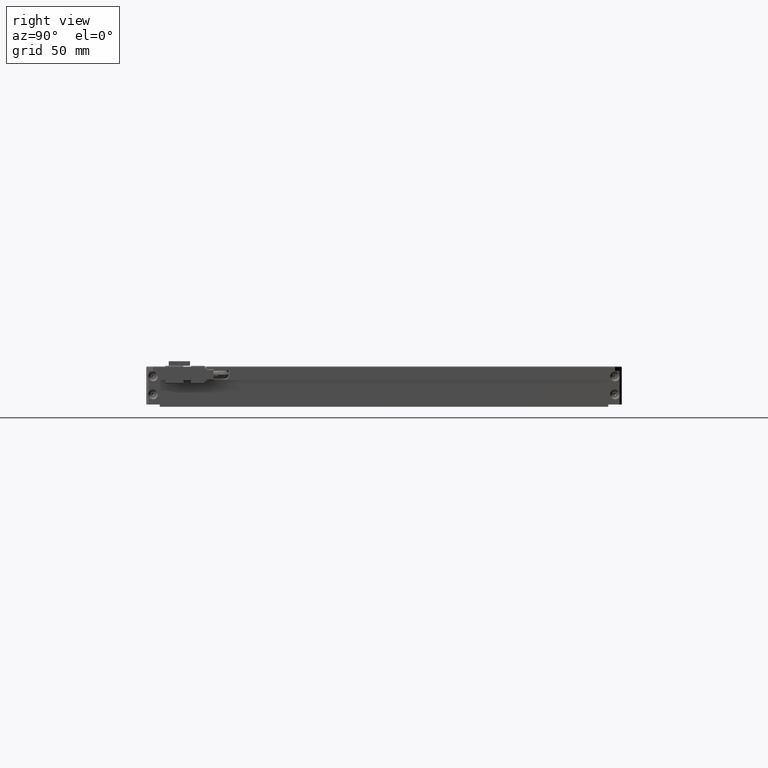
[diagram: clean part render]
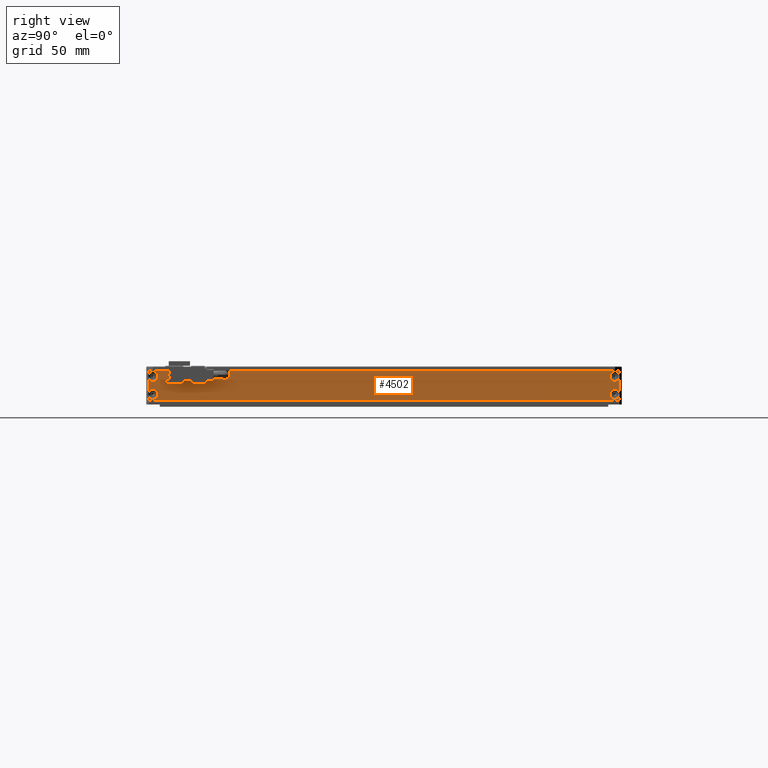
[diagram: same view with one face highlighted and labeled with its STEP entity id]
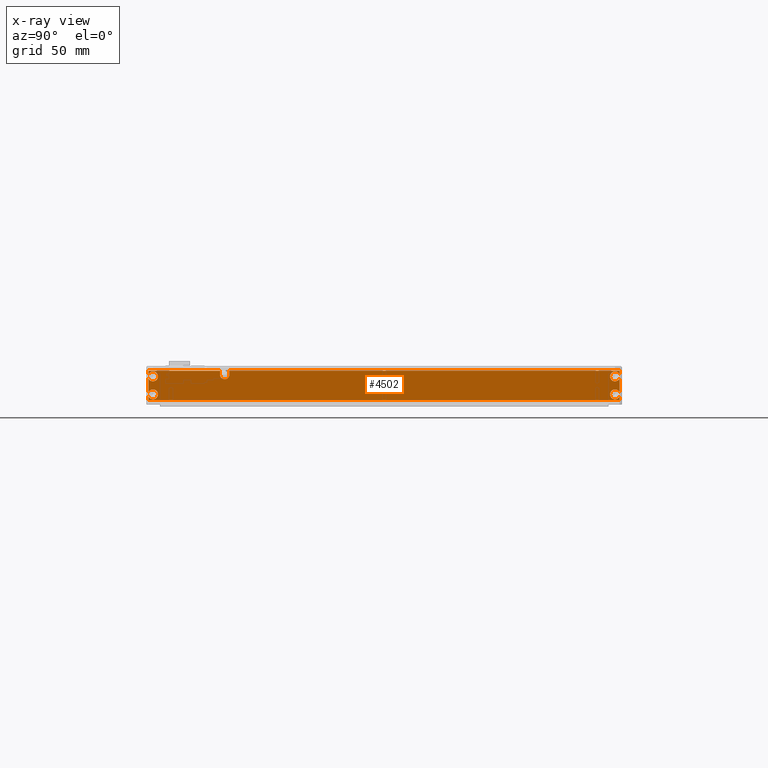
[diagram: x-ray of the same camera — body ghosted, the highlighted face saturated]
A machine part, right view. The second image highlights one B-rep face of the part: STEP entity #4502.
The next image is the same camera in x-ray: the body ghosted, the highlighted face saturated — about 0% of this face is hidden behind the body in this view.
In plain terms, the highlighted planar face has unit normal (1, 0, 0).
Its self-contained STEP definition (entity closure, byte-faithful):
#131 = EDGE_CURVE ( 'NONE', #10730, #13789, #5857, .T. ) ;
#309 = DIRECTION ( 'NONE',  ( -1.000000000000000000, -1.309225264888156400E-016, -0.0000000000000000000 ) ) ;
#881 = VECTOR ( 'NONE', #11494, 1000.000000000000000 ) ;
#920 = ORIENTED_EDGE ( 'NONE', *, *, #948, .T. ) ;
#948 = EDGE_CURVE ( 'NONE', #15920, #8405, #22082, .T. ) ;
#987 = EDGE_CURVE ( 'NONE', #13912, #3328, #17747, .T. ) ;
#1118 = ORIENTED_EDGE ( 'NONE', *, *, #8816, .T. ) ;
#1369 = CARTESIAN_POINT ( 'NONE',  ( 123.6657505824715700, 67.42124601721168600, -10.50000000002363100 ) ) ;
#1495 = CARTESIAN_POINT ( 'NONE',  ( 123.6657505824738500, 71.62124601721910700, -3.416515139024304500 ) ) ;
#1639 = CARTESIAN_POINT ( 'NONE',  ( 123.6657505824761500, -138.3787539827808400, -2.364254625408790400E-011 ) ) ;
#1671 = EDGE_CURVE ( 'NONE', #20873, #5273, #20940, .T. ) ;
#1681 = EDGE_CURVE ( 'NONE', #13428, #2593, #6517, .T. ) ;
#1760 = FACE_OUTER_BOUND ( 'NONE', #4660, .T. ) ;
#1860 = DIRECTION ( 'NONE',  ( 1.309225264888156400E-016, -1.000000000000000000, 2.751886685293596300E-019 ) ) ;
#1868 = CARTESIAN_POINT ( 'NONE',  ( 123.6657505824761200, 71.62124601721905000, -6.500000000023630900 ) ) ;
#1910 = VECTOR ( 'NONE', #21105, 1000.000000000000000 ) ;
#1979 = LINE ( 'NONE', #18743, #10654 ) ;
#2230 = VERTEX_POINT ( 'NONE', #1495 ) ;
#2355 = DIRECTION ( 'NONE',  ( -1.000000000000000000, -1.309225264888156400E-016, -0.0000000000000000000 ) ) ;
#2507 = ORIENTED_EDGE ( 'NONE', *, *, #4250, .T. ) ;
#2590 = VERTEX_POINT ( 'NONE', #11068 ) ;
#2593 = VERTEX_POINT ( 'NONE', #4169 ) ;
#2729 = VECTOR ( 'NONE', #3411, 1000.000000000000000 ) ;
#2904 = CIRCLE ( 'NONE', #18037, 2.200000000007598500 ) ;
#2907 = AXIS2_PLACEMENT_3D ( 'NONE', #11802, #13640, #20290 ) ;
#3209 = DIRECTION ( 'NONE',  ( -3.602839574495699400E-035, 2.751886685293596300E-019, 1.000000000000000000 ) ) ;
#3328 = VERTEX_POINT ( 'NONE', #20526 ) ;
#3393 = VERTEX_POINT ( 'NONE', #20687 ) ;
#3411 = DIRECTION ( 'NONE',  ( 3.602839574495699400E-035, -2.751886685293596300E-019, -1.000000000000000000 ) ) ;
#3790 = AXIS2_PLACEMENT_3D ( 'NONE', #16268, #309, #10852 ) ;
#3900 = EDGE_CURVE ( 'NONE', #8405, #11650, #10681, .T. ) ;
#3966 = CIRCLE ( 'NONE', #11959, 2.200000000007598500 ) ;
#4117 = DIRECTION ( 'NONE',  ( -1.309225264888156400E-016, 1.000000000000000000, -2.751886685293596300E-019 ) ) ;
#4160 = DIRECTION ( 'NONE',  ( 1.309225264888156400E-016, -1.000000000000000000, 2.751886685293596300E-019 ) ) ;
#4169 = CARTESIAN_POINT ( 'NONE',  ( 123.6657505824781400, 71.62124601721907900, -1.583484861012602900 ) ) ;
#4185 = VERTEX_POINT ( 'NONE', #10836 ) ;
#4250 = EDGE_CURVE ( 'NONE', #13789, #12962, #15929, .T. ) ;
#4399 = AXIS2_PLACEMENT_3D ( 'NONE', #10575, #12548, #7383 ) ;
#4500 = DIRECTION ( 'NONE',  ( -1.000000000000000000, -1.309225264888156400E-016, -0.0000000000000000000 ) ) ;
#4502 = ADVANCED_FACE ( 'NONE', ( #1760 ), #20219, .T. ) ;
#4660 = EDGE_LOOP ( 'NONE', ( #8604, #13824, #16644, #10979, #2507, #18767, #920, #21581, #17124, #7338, #4777, #10151, #19348, #1118, #19115, #17308, #19765, #21653, #9464, #15443 ) ) ;
#4777 = ORIENTED_EDGE ( 'NONE', *, *, #1671, .T. ) ;
#5021 = DIRECTION ( 'NONE',  ( -1.000000000000000000, -1.309225264888156400E-016, -0.0000000000000000000 ) ) ;
#5273 = VERTEX_POINT ( 'NONE', #8632 ) ;
#5355 = EDGE_CURVE ( 'NONE', #2230, #2590, #19326, .T. ) ;
#5409 = LINE ( 'NONE', #18902, #2729 ) ;
#5846 = DIRECTION ( 'NONE',  ( 3.602839574495699400E-035, -2.751886685293596300E-019, -1.000000000000000000 ) ) ;
#5857 = LINE ( 'NONE', #11860, #14029 ) ;
#5900 = CARTESIAN_POINT ( 'NONE',  ( 123.6657505824738500, 71.62124601721907900, -11.41651513902436800 ) ) ;
#6111 = VECTOR ( 'NONE', #1860, 1000.000000000000000 ) ;
#6354 = EDGE_CURVE ( 'NONE', #3328, #10730, #9691, .T. ) ;
#6463 = CARTESIAN_POINT ( 'NONE',  ( 123.6657505824761400, -102.2787539827808300, -2.362866846628008900E-011 ) ) ;
#6517 = LINE ( 'NONE', #14285, #1910 ) ;
#6539 = CARTESIAN_POINT ( 'NONE',  ( 123.6657505824716000, -136.3787539827808100, -2.500000000023630900 ) ) ;
#6690 = CARTESIAN_POINT ( 'NONE',  ( 123.6657505824716000, -134.1787539827560400, -10.50000000002363100 ) ) ;
#7287 = LINE ( 'NONE', #21184, #18398 ) ;
#7338 = ORIENTED_EDGE ( 'NONE', *, *, #13546, .T. ) ;
#7383 = DIRECTION ( 'NONE',  ( 0.0000000000000000000, -1.000000000000000000, 3.942553354448312000E-015 ) ) ;
#7495 = DIRECTION ( 'NONE',  ( -1.000000000000000000, -1.309225264888156400E-016, -0.0000000000000000000 ) ) ;
#7496 = DIRECTION ( 'NONE',  ( 0.0000000000000000000, -1.000000000000000000, 0.0000000000000000000 ) ) ;
#7886 = VECTOR ( 'NONE', #15622, 1000.000000000000000 ) ;
#8405 = VERTEX_POINT ( 'NONE', #12347 ) ;
#8556 = CARTESIAN_POINT ( 'NONE',  ( 123.6657505824738800, -138.3787539827808400, -3.416515139044482600 ) ) ;
#8560 = EDGE_CURVE ( 'NONE', #12962, #15920, #18242, .T. ) ;
#8604 = ORIENTED_EDGE ( 'NONE', *, *, #10565, .T. ) ;
#8632 = CARTESIAN_POINT ( 'NONE',  ( 123.6657505824738800, -138.3787539827808400, -11.41651513904448500 ) ) ;
#8816 = EDGE_CURVE ( 'NONE', #4185, #12046, #13070, .T. ) ;
#9213 = CARTESIAN_POINT ( 'NONE',  ( 123.6657505824715700, 69.62124601721927800, -2.500000000023630900 ) ) ;
#9464 = ORIENTED_EDGE ( 'NONE', *, *, #12773, .T. ) ;
#9595 = LINE ( 'NONE', #17318, #6111 ) ;
#9616 = EDGE_CURVE ( 'NONE', #9820, #3393, #13056, .T. ) ;
#9691 = CIRCLE ( 'NONE', #19078, 2.100000000010787500 ) ;
#9732 = CARTESIAN_POINT ( 'NONE',  ( 123.6657505824761500, -138.3787539827808400, -6.500000000023630900 ) ) ;
#9820 = VERTEX_POINT ( 'NONE', #1369 ) ;
#10090 = CARTESIAN_POINT ( 'NONE',  ( 123.6657505824716000, -104.3787539827808100, -1.700000000023616600 ) ) ;
#10151 = ORIENTED_EDGE ( 'NONE', *, *, #18654, .F. ) ;
#10565 = EDGE_CURVE ( 'NONE', #13428, #13912, #9595, .T. ) ;
#10575 = CARTESIAN_POINT ( 'NONE',  ( 123.6657505824716000, -136.3787539827808100, -10.50000000002363100 ) ) ;
#10654 = VECTOR ( 'NONE', #20636, 1000.000000000000000 ) ;
#10681 = CIRCLE ( 'NONE', #21194, 2.200000000024793200 ) ;
#10696 = CARTESIAN_POINT ( 'NONE',  ( 123.6657505824761200, 71.62124601721909300, -2.361912748716221700E-011 ) ) ;
#10698 = DIRECTION ( 'NONE',  ( 0.0000000000000000000, -1.000000000000000000, 4.731064025337974900E-015 ) ) ;
#10730 = VERTEX_POINT ( 'NONE', #19363 ) ;
#10836 = CARTESIAN_POINT ( 'NONE',  ( 123.6657505824761200, 71.62124601721906500, -13.00000000002363800 ) ) ;
#10852 = DIRECTION ( 'NONE',  ( 0.0000000000000000000, -1.000000000000000000, 3.548298019003481000E-015 ) ) ;
#10979 = ORIENTED_EDGE ( 'NONE', *, *, #131, .T. ) ;
#10991 = DIRECTION ( 'NONE',  ( 0.0000000000000000000, -1.000000000000000000, 0.0000000000000000000 ) ) ;
#11025 = CARTESIAN_POINT ( 'NONE',  ( 123.6657505824761400, -33.37875398278077200, -13.00000000002364500 ) ) ;
#11068 = CARTESIAN_POINT ( 'NONE',  ( 123.6657505824715700, 67.42124601721168600, -2.500000000023630900 ) ) ;
#11494 = DIRECTION ( 'NONE',  ( 3.602839574495699400E-035, -2.751886685293596300E-019, -1.000000000000000000 ) ) ;
#11601 = EDGE_CURVE ( 'NONE', #11650, #20388, #5409, .T. ) ;
#11650 = VERTEX_POINT ( 'NONE', #8556 ) ;
#11802 = CARTESIAN_POINT ( 'NONE',  ( 123.6657505824761400, -33.37875398278077200, -6.500000000023630900 ) ) ;
#11860 = CARTESIAN_POINT ( 'NONE',  ( 123.6657505824761400, -106.4787539827807900, -6.500000000023630900 ) ) ;
#11959 = AXIS2_PLACEMENT_3D ( 'NONE', #14205, #12738, #7496 ) ;
#12046 = VERTEX_POINT ( 'NONE', #5900 ) ;
#12347 = CARTESIAN_POINT ( 'NONE',  ( 123.6657505824716000, -134.1787539827560400, -2.500000000023631300 ) ) ;
#12375 = DIRECTION ( 'NONE',  ( -1.000000000000000000, -1.309225264888156400E-016, -0.0000000000000000000 ) ) ;
#12548 = DIRECTION ( 'NONE',  ( -1.000000000000000000, -1.309225264888156400E-016, -0.0000000000000000000 ) ) ;
#12738 = DIRECTION ( 'NONE',  ( -1.000000000000000000, -1.309225264888156400E-016, -0.0000000000000000000 ) ) ;
#12773 = EDGE_CURVE ( 'NONE', #2590, #2593, #2904, .T. ) ;
#12962 = VERTEX_POINT ( 'NONE', #1639 ) ;
#13056 = CIRCLE ( 'NONE', #15676, 2.200000000007598500 ) ;
#13065 = LINE ( 'NONE', #11025, #21735 ) ;
#13070 = LINE ( 'NONE', #1868, #7886 ) ;
#13075 = CARTESIAN_POINT ( 'NONE',  ( 123.6657505824761400, -106.4787539827807900, -2.364254625408790400E-011 ) ) ;
#13090 = DIRECTION ( 'NONE',  ( 0.0000000000000000000, -1.000000000000000000, 0.0000000000000000000 ) ) ;
#13428 = VERTEX_POINT ( 'NONE', #10696 ) ;
#13546 = EDGE_CURVE ( 'NONE', #20388, #20873, #18894, .T. ) ;
#13640 = DIRECTION ( 'NONE',  ( 1.000000000000000000, 1.309225264888156400E-016, 0.0000000000000000000 ) ) ;
#13789 = VERTEX_POINT ( 'NONE', #13075 ) ;
#13824 = ORIENTED_EDGE ( 'NONE', *, *, #987, .T. ) ;
#13912 = VERTEX_POINT ( 'NONE', #6463 ) ;
#14027 = VECTOR ( 'NONE', #4160, 1000.000000000000000 ) ;
#14029 = VECTOR ( 'NONE', #3209, 1000.000000000000000 ) ;
#14178 = DIRECTION ( 'NONE',  ( -3.602839574495699400E-035, 2.751886685293596300E-019, 1.000000000000000000 ) ) ;
#14205 = CARTESIAN_POINT ( 'NONE',  ( 123.6657505824715700, 69.62124601721927800, -10.50000000002363100 ) ) ;
#14285 = CARTESIAN_POINT ( 'NONE',  ( 123.6657505824761600, 71.62124601721906500, -6.500000000023630900 ) ) ;
#14523 = CARTESIAN_POINT ( 'NONE',  ( 123.6657505824738800, -138.3787539827808400, -1.583484861002775600 ) ) ;
#14784 = CARTESIAN_POINT ( 'NONE',  ( 123.6657505824715700, 69.62124601721927800, -2.500000000023630900 ) ) ;
#15245 = EDGE_CURVE ( 'NONE', #20629, #4185, #13065, .T. ) ;
#15443 = ORIENTED_EDGE ( 'NONE', *, *, #1681, .F. ) ;
#15447 = DIRECTION ( 'NONE',  ( 0.0000000000000000000, -1.000000000000000000, 3.548298019003481000E-015 ) ) ;
#15622 = DIRECTION ( 'NONE',  ( -3.602839574495699400E-035, 2.751886685293596300E-019, 1.000000000000000000 ) ) ;
#15676 = AXIS2_PLACEMENT_3D ( 'NONE', #21168, #7495, #19634 ) ;
#15920 = VERTEX_POINT ( 'NONE', #14523 ) ;
#15929 = LINE ( 'NONE', #21393, #14027 ) ;
#16268 = CARTESIAN_POINT ( 'NONE',  ( 123.6657505824716000, -136.3787539827808100, -2.500000000023630900 ) ) ;
#16644 = ORIENTED_EDGE ( 'NONE', *, *, #6354, .T. ) ;
#17021 = AXIS2_PLACEMENT_3D ( 'NONE', #9213, #2355, #10991 ) ;
#17124 = ORIENTED_EDGE ( 'NONE', *, *, #11601, .T. ) ;
#17204 = VECTOR ( 'NONE', #5846, 1000.000000000000000 ) ;
#17308 = ORIENTED_EDGE ( 'NONE', *, *, #9616, .T. ) ;
#17318 = CARTESIAN_POINT ( 'NONE',  ( 123.6657505824761400, -33.37875398278077200, -2.362086221063819400E-011 ) ) ;
#17489 = CARTESIAN_POINT ( 'NONE',  ( 123.6657505824738800, -138.3787539827808400, -9.583484861002777000 ) ) ;
#17747 = LINE ( 'NONE', #17768, #17204 ) ;
#17768 = CARTESIAN_POINT ( 'NONE',  ( 123.6657505824761400, -102.2787539827808300, -6.500000000023630900 ) ) ;
#18037 = AXIS2_PLACEMENT_3D ( 'NONE', #14784, #4500, #13090 ) ;
#18242 = LINE ( 'NONE', #9732, #881 ) ;
#18398 = VECTOR ( 'NONE', #14178, 1000.000000000000000 ) ;
#18654 = EDGE_CURVE ( 'NONE', #20629, #5273, #7287, .T. ) ;
#18743 = CARTESIAN_POINT ( 'NONE',  ( 123.6657505824761200, 71.62124601721910700, -6.500000000023630900 ) ) ;
#18767 = ORIENTED_EDGE ( 'NONE', *, *, #8560, .T. ) ;
#18894 = CIRCLE ( 'NONE', #4399, 2.200000000024793200 ) ;
#18902 = CARTESIAN_POINT ( 'NONE',  ( 123.6657505824761500, -138.3787539827808400, -6.500000000023630900 ) ) ;
#18977 = DIRECTION ( 'NONE',  ( 0.0000000000000000000, -1.000000000000000000, 0.0000000000000000000 ) ) ;
#19078 = AXIS2_PLACEMENT_3D ( 'NONE', #10090, #5021, #18977 ) ;
#19115 = ORIENTED_EDGE ( 'NONE', *, *, #21446, .T. ) ;
#19326 = CIRCLE ( 'NONE', #17021, 2.200000000007598500 ) ;
#19348 = ORIENTED_EDGE ( 'NONE', *, *, #15245, .T. ) ;
#19363 = CARTESIAN_POINT ( 'NONE',  ( 123.6657505824738800, -106.4787539827785000, -1.700000000023617500 ) ) ;
#19634 = DIRECTION ( 'NONE',  ( 0.0000000000000000000, -1.000000000000000000, 0.0000000000000000000 ) ) ;
#19765 = ORIENTED_EDGE ( 'NONE', *, *, #19872, .T. ) ;
#19872 = EDGE_CURVE ( 'NONE', #3393, #2230, #1979, .T. ) ;
#19886 = CARTESIAN_POINT ( 'NONE',  ( 123.6657505824761500, -138.3787539827808400, -13.00000000002364900 ) ) ;
#20219 = PLANE ( 'NONE',  #2907 ) ;
#20290 = DIRECTION ( 'NONE',  ( 1.309225264888156400E-016, -1.000000000000000000, 2.751886685293596300E-019 ) ) ;
#20388 = VERTEX_POINT ( 'NONE', #17489 ) ;
#20499 = DIRECTION ( 'NONE',  ( -1.000000000000000000, -1.309225264888156400E-016, -0.0000000000000000000 ) ) ;
#20526 = CARTESIAN_POINT ( 'NONE',  ( 123.6657505824738600, -102.2787539827831000, -1.700000000023617500 ) ) ;
#20629 = VERTEX_POINT ( 'NONE', #19886 ) ;
#20636 = DIRECTION ( 'NONE',  ( -3.602839574495699400E-035, 2.751886685293596300E-019, 1.000000000000000000 ) ) ;
#20687 = CARTESIAN_POINT ( 'NONE',  ( 123.6657505824781400, 71.62124601721910700, -9.583484861012650000 ) ) ;
#20873 = VERTEX_POINT ( 'NONE', #6690 ) ;
#20940 = CIRCLE ( 'NONE', #21714, 2.200000000024793200 ) ;
#21027 = CARTESIAN_POINT ( 'NONE',  ( 123.6657505824716000, -136.3787539827808100, -10.50000000002363100 ) ) ;
#21105 = DIRECTION ( 'NONE',  ( 3.602839574495699400E-035, -2.751886685293596300E-019, -1.000000000000000000 ) ) ;
#21168 = CARTESIAN_POINT ( 'NONE',  ( 123.6657505824715700, 69.62124601721927800, -10.50000000002363100 ) ) ;
#21184 = CARTESIAN_POINT ( 'NONE',  ( 123.6657505824761500, -138.3787539827808400, -6.500000000023630900 ) ) ;
#21194 = AXIS2_PLACEMENT_3D ( 'NONE', #6539, #20499, #15447 ) ;
#21393 = CARTESIAN_POINT ( 'NONE',  ( 123.6657505824761400, -33.37875398278077200, -2.364254625408790400E-011 ) ) ;
#21446 = EDGE_CURVE ( 'NONE', #12046, #9820, #3966, .T. ) ;
#21581 = ORIENTED_EDGE ( 'NONE', *, *, #3900, .T. ) ;
#21653 = ORIENTED_EDGE ( 'NONE', *, *, #5355, .T. ) ;
#21714 = AXIS2_PLACEMENT_3D ( 'NONE', #21027, #12375, #10698 ) ;
#21735 = VECTOR ( 'NONE', #4117, 1000.000000000000000 ) ;
#22082 = CIRCLE ( 'NONE', #3790, 2.200000000024793200 ) ;